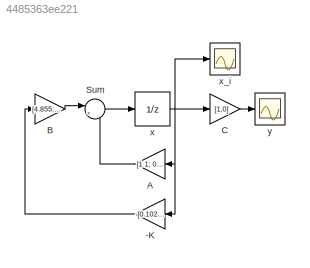
MODEL slx_4485363ee221
KIND model
CONFIG AbsTol = auto
CONFIG EnableMultiTasking = off
CONFIG FixedStep = 1
CONFIG MaxStep = auto
CONFIG MinStep = auto
CONFIG RelTol = 1e-3
CONFIG SampleTimeConstraint = Unconstrained
CONFIG SolverName = FixedStepAuto
CONFIG StartTime = 0.0
CONFIG StopTime = 10.0
BLOCK [Gain] -K
  Gain = -[0.102986611740474,0.154479917610711]
  Multiplication = Matrix(K*u)
BLOCK [Gain] A
  Gain = [1 1; 0 1]
  Multiplication = Matrix(K*u)
BLOCK [Gain] B
  Gain = [4.855;9.71];
  Multiplication = Matrix(K*u)
BLOCK [Gain] C
  Gain = [1,0]
  Multiplication = Matrix(K*u)
BLOCK [Sum] Sum
  Inputs = |++
BLOCK [UnitDelay] x
  HasFrameUpgradeWarning = on
  InitialCondition = [1;0];
  SampleTime = -1
BLOCK [Scope] x_i
  Floating = off
  NumInputPorts = 1
  ScopeSpecificationString = Simulink.scopes.TimeScopeBlockCfg('CurrentConfiguration', extmgr.ConfigurationSet(extmgr.Configuration('Core','General UI',true,'FigureColor',[1 1 1]),extmgr.Configuration('Core','Source UI',true),extmgr.Configuration('Sources','WiredSimulink',true,'DataLoggingVariableName','ScopeData1'),extmgr.Configuration('Visuals','Time Domain',true,'SerializedDisplays',{struct('MinYLimReal','-1.25','MaxYLimRe...<+2316ch>
BLOCK [Scope] y
  Floating = off
  NumInputPorts = 1
  ScopeSpecificationString = Simulink.scopes.TimeScopeBlockCfg('CurrentConfiguration', extmgr.ConfigurationSet(extmgr.Configuration('Core','General UI',true,'FigureColor',[1 1 1]),extmgr.Configuration('Core','Source UI',true),extmgr.Configuration('Sources','WiredSimulink',true),extmgr.Configuration('Visuals','Time Domain',true,'SerializedDisplays',{struct('MinYLimReal','-0.125','MaxYLimReal','1.125','YLabelReal','y(t)','MinYL...<+2231ch>
LINE -K:1 -> B:1
LINE A:1 -> Sum:2
LINE B:1 -> Sum:1
LINE C:1 -> y:1
LINE Sum:1 -> x:1
NET x:1 -> -K:1, A:1, C:1, x_i:1
note: NET lines group one-source signal fan-out (src -> all destinations, sorted); 1:1 wires keep LINE
